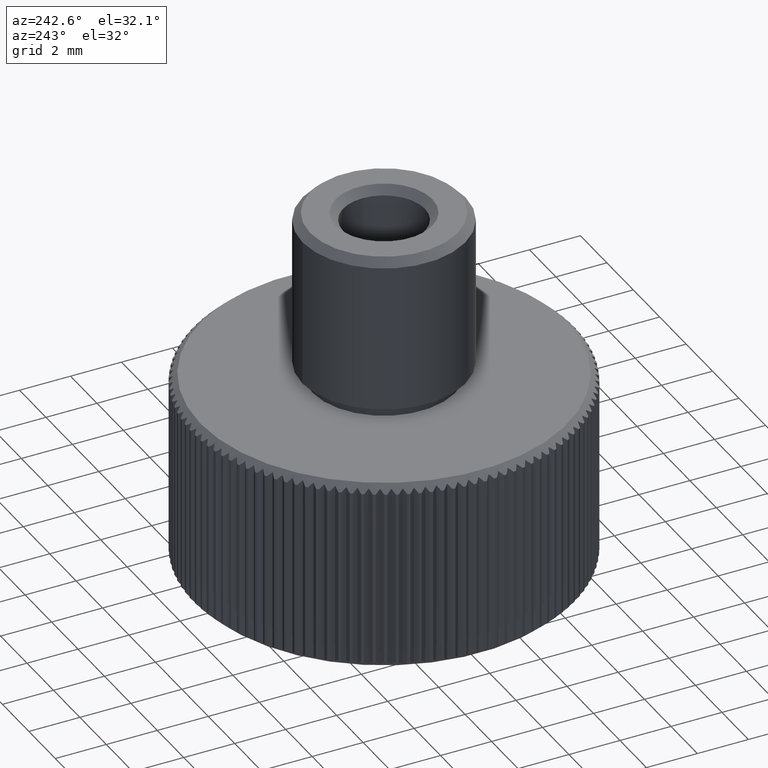
[diagram: clean part render]
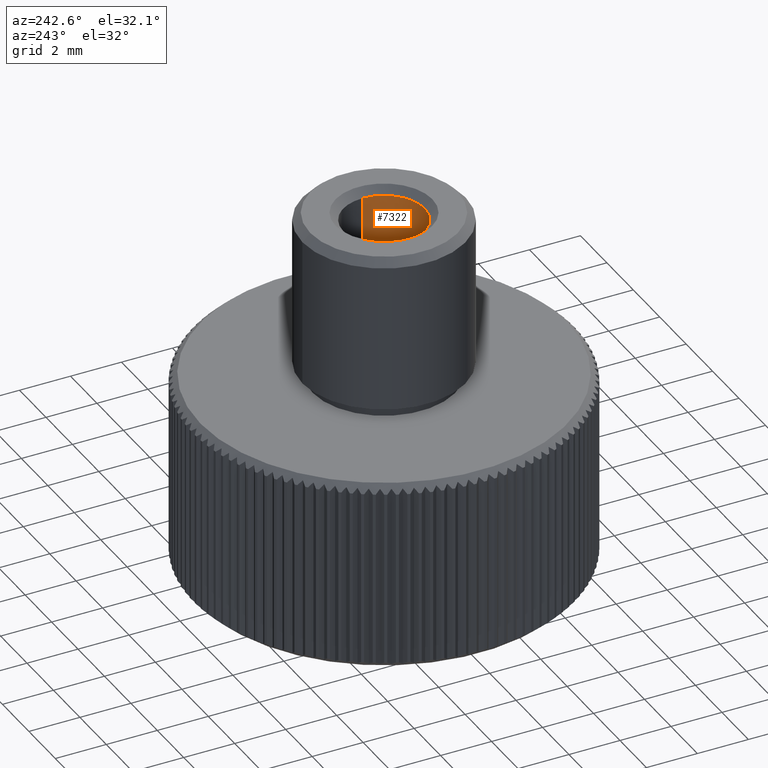
[diagram: same view with one face highlighted and labeled with its STEP entity id]
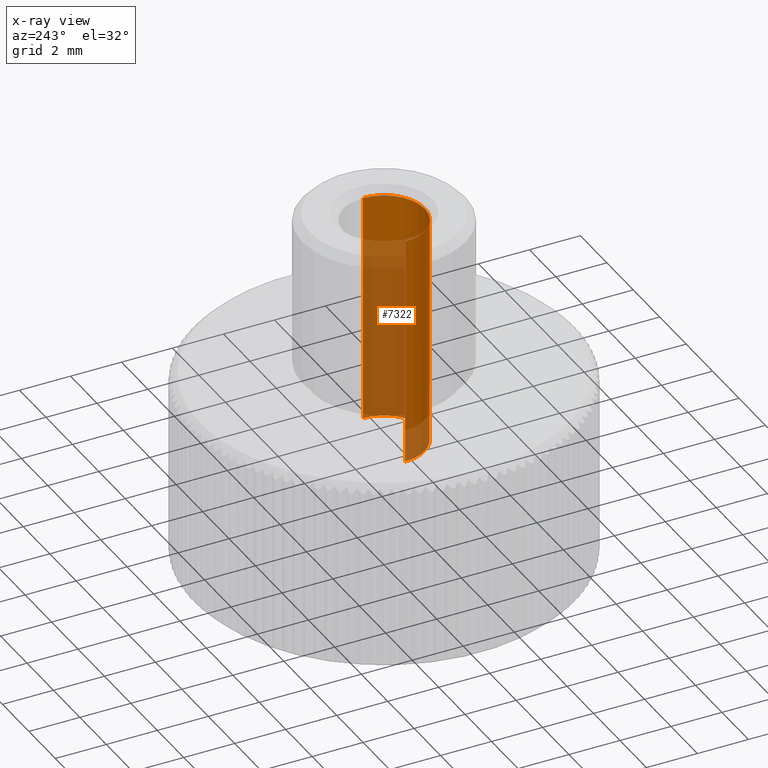
[diagram: x-ray of the same camera — body ghosted, the highlighted face saturated]
A machine part, auxiliary view. The second image highlights one B-rep face of the part: STEP entity #7322.
The next image is the same camera in x-ray: the body ghosted, the highlighted face saturated — about 54% of this face is hidden behind the body in this view.
In plain terms, the highlighted cylindrical surface (partial cylindrical patch) has radius 1.6 mm, axis along (0, -0, 1).
Its self-contained STEP definition (entity closure, byte-faithful):
#106 = CARTESIAN_POINT ( 'NONE',  ( 0.000000000000000000, 0.000000000000000000, 4.750000000000000000 ) ) ;
#643 = CIRCLE ( 'NONE', #8038, 1.600000000000000089 ) ;
#720 = VERTEX_POINT ( 'NONE', #4367 ) ;
#899 = EDGE_CURVE ( 'NONE', #720, #8122, #12192, .T. ) ;
#1287 = AXIS2_PLACEMENT_3D ( 'NONE', #2855, #12935, #12070 ) ;
#1326 = CARTESIAN_POINT ( 'NONE',  ( 1.600000000000000089, 0.000000000000000000, 4.750000000000000000 ) ) ;
#1485 = CIRCLE ( 'NONE', #9771, 1.600000000000000089 ) ;
#1754 = AXIS2_PLACEMENT_3D ( 'NONE', #106, #11179, #8269 ) ;
#1974 = CARTESIAN_POINT ( 'NONE',  ( -1.600000000000000089, 1.959434878635765230E-16, 4.750000000000000000 ) ) ;
#2222 = DIRECTION ( 'NONE',  ( 1.000000000000000000, 0.000000000000000000, 0.000000000000000000 ) ) ;
#2325 = DIRECTION ( 'NONE',  ( 0.000000000000000000, -0.000000000000000000, 1.000000000000000000 ) ) ;
#2855 = CARTESIAN_POINT ( 'NONE',  ( 0.000000000000000000, 0.000000000000000000, 4.750000000000031974 ) ) ;
#2935 = EDGE_CURVE ( 'NONE', #9469, #3567, #643, .T. ) ;
#3068 = CARTESIAN_POINT ( 'NONE',  ( 0.000000000000000000, 0.000000000000000000, 13.80000000000000071 ) ) ;
#3137 = EDGE_LOOP ( 'NONE', ( #12870, #7937, #6363, #3602, #12998 ) ) ;
#3567 = VERTEX_POINT ( 'NONE', #11867 ) ;
#3602 = ORIENTED_EDGE ( 'NONE', *, *, #2935, .T. ) ;
#4182 = DIRECTION ( 'NONE',  ( 1.000000000000000000, 0.000000000000000000, 0.000000000000000000 ) ) ;
#4199 = CARTESIAN_POINT ( 'NONE',  ( -1.600000000000000089, 1.959434878635765230E-16, 13.80000000000000071 ) ) ;
#4263 = CIRCLE ( 'NONE', #1287, 1.600000000000000089 ) ;
#4367 = CARTESIAN_POINT ( 'NONE',  ( -1.600000000000000089, 1.959434878635765230E-16, 4.750000000000031974 ) ) ;
#4970 = FACE_OUTER_BOUND ( 'NONE', #3137, .T. ) ;
#5380 = LINE ( 'NONE', #1326, #6038 ) ;
#5535 = EDGE_CURVE ( 'NONE', #8122, #9469, #1485, .T. ) ;
#6009 = CARTESIAN_POINT ( 'NONE',  ( 1.600000000000000089, 0.000000000000000000, 4.750000000000031974 ) ) ;
#6029 = EDGE_CURVE ( 'NONE', #720, #6247, #4263, .T. ) ;
#6038 = VECTOR ( 'NONE', #2325, 1000.000000000000000 ) ;
#6247 = VERTEX_POINT ( 'NONE', #6009 ) ;
#6363 = ORIENTED_EDGE ( 'NONE', *, *, #5535, .T. ) ;
#7259 = CARTESIAN_POINT ( 'NONE',  ( 0.000000000000000000, 0.000000000000000000, 13.80000000000000071 ) ) ;
#7322 = ADVANCED_FACE ( 'NONE', ( #4970 ), #12186, .F. ) ;
#7937 = ORIENTED_EDGE ( 'NONE', *, *, #899, .T. ) ;
#8038 = AXIS2_PLACEMENT_3D ( 'NONE', #3068, #10283, #4182 ) ;
#8122 = VERTEX_POINT ( 'NONE', #4199 ) ;
#8269 = DIRECTION ( 'NONE',  ( 1.000000000000000000, 0.000000000000000000, 0.000000000000000000 ) ) ;
#8803 = VECTOR ( 'NONE', #10132, 1000.000000000000000 ) ;
#9469 = VERTEX_POINT ( 'NONE', #11988 ) ;
#9771 = AXIS2_PLACEMENT_3D ( 'NONE', #7259, #11303, #2222 ) ;
#10016 = EDGE_CURVE ( 'NONE', #6247, #3567, #5380, .T. ) ;
#10132 = DIRECTION ( 'NONE',  ( 0.000000000000000000, -0.000000000000000000, 1.000000000000000000 ) ) ;
#10283 = DIRECTION ( 'NONE',  ( 0.000000000000000000, 0.000000000000000000, 1.000000000000000000 ) ) ;
#11179 = DIRECTION ( 'NONE',  ( 0.000000000000000000, -0.000000000000000000, 1.000000000000000000 ) ) ;
#11303 = DIRECTION ( 'NONE',  ( 0.000000000000000000, 0.000000000000000000, 1.000000000000000000 ) ) ;
#11867 = CARTESIAN_POINT ( 'NONE',  ( 1.600000000000000089, 0.000000000000000000, 13.80000000000000071 ) ) ;
#11988 = CARTESIAN_POINT ( 'NONE',  ( 0.000000000000000000, -1.600000000000000089, 13.80000000000000071 ) ) ;
#12070 = DIRECTION ( 'NONE',  ( -1.000000000000000000, 0.000000000000000000, -2.005774019098183203E-14 ) ) ;
#12186 = CYLINDRICAL_SURFACE ( 'NONE', #1754, 1.600000000000000089 ) ;
#12192 = LINE ( 'NONE', #1974, #8803 ) ;
#12870 = ORIENTED_EDGE ( 'NONE', *, *, #6029, .F. ) ;
#12935 = DIRECTION ( 'NONE',  ( -0.000000000000000000, -0.000000000000000000, 1.000000000000000000 ) ) ;
#12998 = ORIENTED_EDGE ( 'NONE', *, *, #10016, .F. ) ;